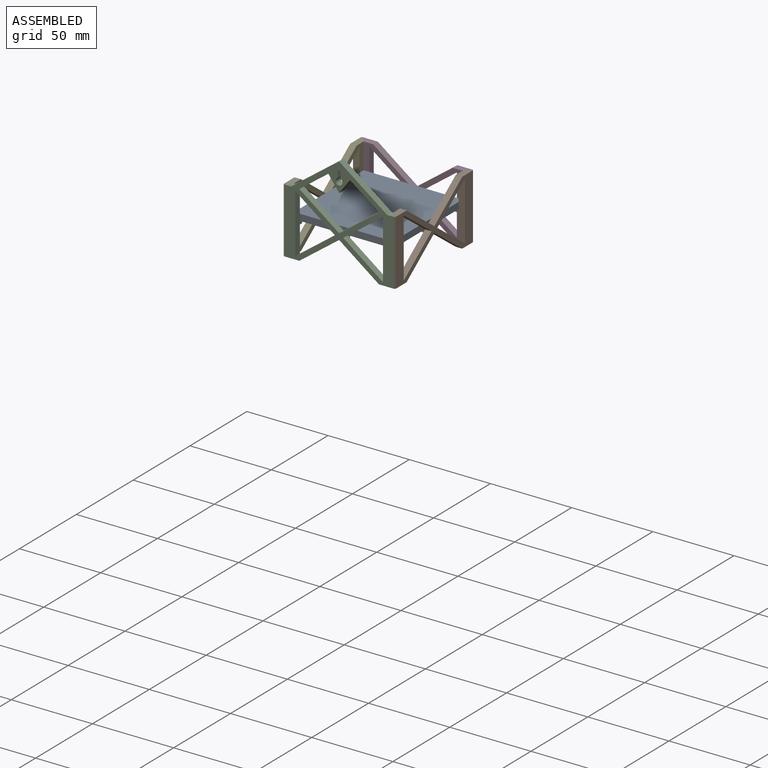
[diagram: assembled view]
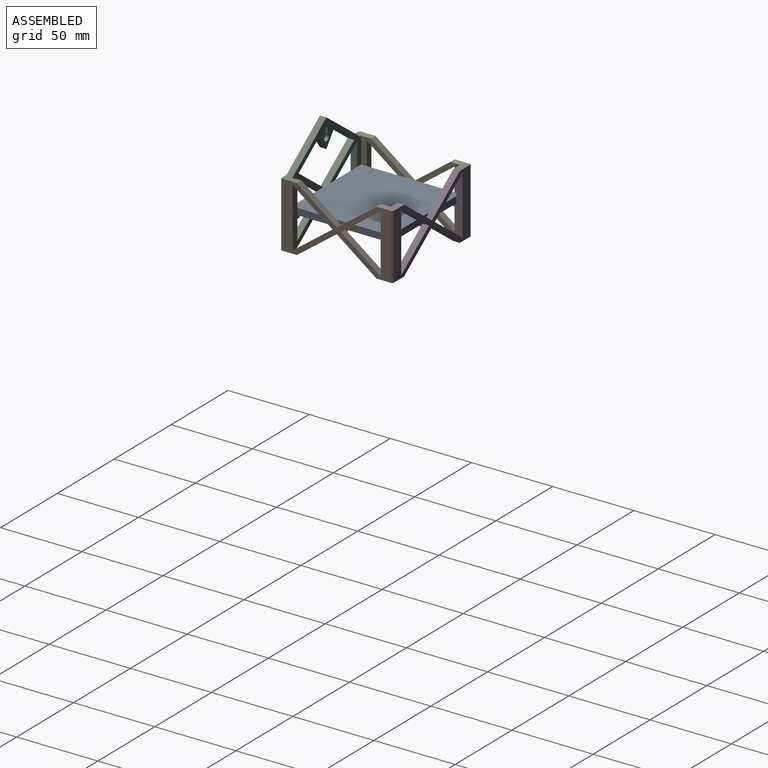
[diagram: assembled view, second angle]
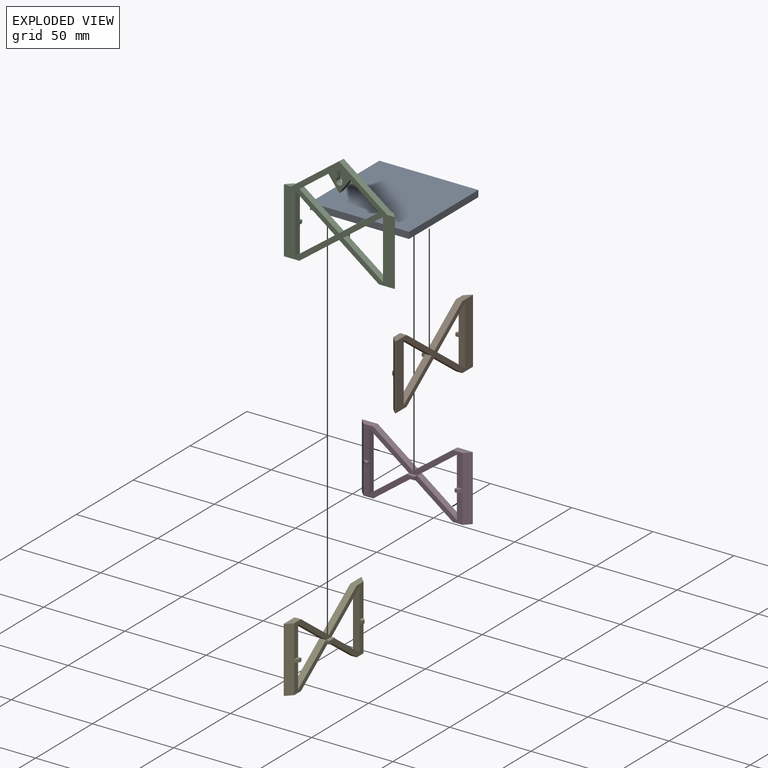
[diagram: exploded view]
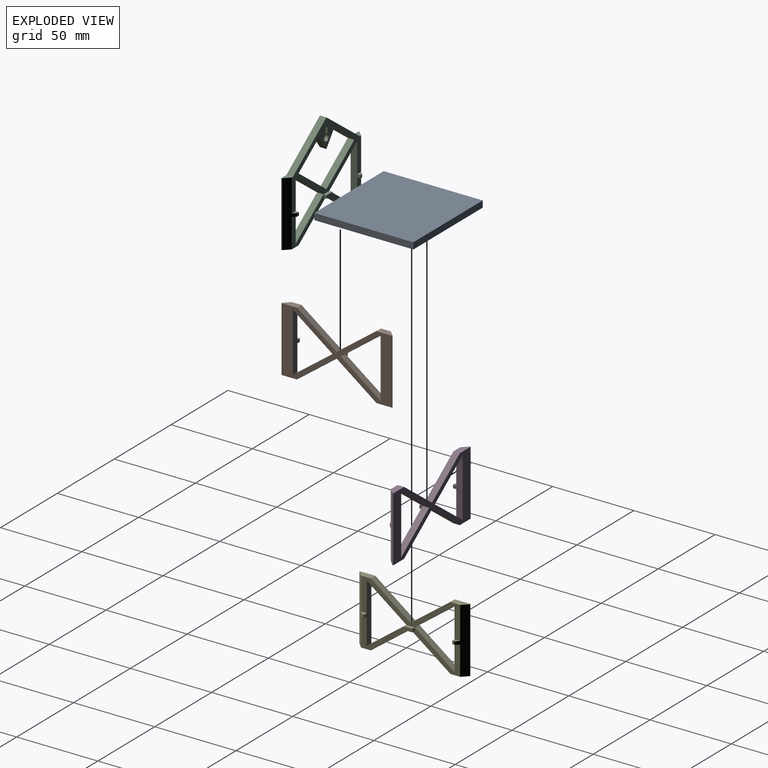
[diagram: exploded view, second angle]
ASSEMBLY  parts=5 mates=4
PART A: 6 faces, bbox 61x61x4 mm
  f0: plane 61x4mm, normal (1,0,0), area 244mm2, adj f1,f3,f4,f5
  f1: plane 61x4mm, normal (0,1,0), area 244mm2, adj f0,f2,f4,f5
  f2: plane 61x4mm, normal (-1,0,0), area 244mm2, adj f1,f3,f4,f5
  f3: plane 61x4mm, normal (0,-1,0), area 244mm2, adj f0,f2,f4,f5
  f4: plane 61x61mm, normal (0,0,1), area 3721mm2, adj f0,f1,f2,f3
  f5: plane 61x61mm, normal (0,0,-1), area 3721mm2, adj f0,f1,f2,f3
PART B: 34 faces, bbox 6x68x40 mm
  f0: plane 30.3x20mm, normal (-1,0,0), area 153.4mm2, adj f3,f10,f11,f18,f21,f25,f26,f32
  f1: plane 30.3x20mm, normal (-1,0,0), area 153.4mm2, adj f6,f12,f13,f16,f20,f23,f26,f29
  f2: plane 61x20mm, normal (-1,0,0), area 330.7mm2, adj f3,f4,f5,f6,f7,f8,f15,f17
  f3: plane 36.3x6mm, normal (0,1,0), area 149.2mm2, adj f0,f2,f4,f18,f19,f31,f32,f33
  f4: plane 24.5x18.15mm, normal (0,-0.6,-0.8), area 122mm2, adj f2,f3,f18,f19
  f5: plane 24.5x18.15mm, normal (0,0.6,-0.8), area 122mm2, adj f2,f6,f16,f19
  f6: plane 36.3x6mm, normal (0,-1,0), area 149.2mm2, adj f1,f2,f5,f16,f19,f28,f29,f30
  f7: plane 24.5x18.15mm, normal (0,0.6,0.8), area 122mm2, adj f2,f8,f17,f19
  f8: plane 9.5x4mm, normal (0,0,1), area 31.9mm2, adj f2,f7,f9,f19,f21
  f9: plane 40x0.5mm, normal (0,-1,0), area 20mm2, adj f8,f10,f19,f21
  f10: plane 9.5x4mm, normal (0,0,-1), area 31.9mm2, adj f0,f9,f11,f19,f21
  f11: plane 24.5x18.15mm, normal (0,0.6,-0.8), area 122mm2, adj f0,f10,f12,f19,f22
  f12: plane 24.5x18.15mm, normal (0,-0.6,-0.8), area 122mm2, adj f1,f11,f13,f19,f22
  f13: plane 9.5x4mm, normal (0,0,-1), area 31.9mm2, adj f1,f12,f14,f19,f20
  f14: plane 40x0.5mm, normal (0,1,0), area 20mm2, adj f13,f15,f19,f20
  f15: plane 9.5x4mm, normal (0,0,1), area 31.9mm2, adj f2,f14,f17,f19,f20
  f16: plane 24.5x18.15mm, normal (0,0.6,0.8), area 122mm2, adj f1,f5,f6,f19
  f17: plane 24.5x18.15mm, normal (0,-0.6,0.8), area 122mm2, adj f2,f7,f15,f19
  f18: plane 24.5x18.15mm, normal (0,-0.6,0.8), area 122mm2, adj f0,f3,f4,f19
  f19: plane 68x40mm, normal (1,0,0), area 941.5mm2, adj f3,f4,f5,f6,f7,f8,f9,f10
  f20: plane 40x5.5mm, normal (-0.71,0.71,0), area 203.6mm2, adj f1,f2,f13,f14,f15,f28,f29,f30
  f21: plane 40x5.5mm, normal (-0.71,-0.71,0), area 203.6mm2, adj f0,f2,f8,f9,f10,f31,f32,f33
  f22: plane 0.4x0.15mm, normal (1,0,0), area 0mm2, adj f11,f12,f26
  f23: plane 2x2mm, normal (0,1,0), area 4mm2, adj f1,f24,f26,f27
  f24: plane 5x2mm, normal (0,0,1), area 10mm2, adj f2,f23,f25,f27
  f25: plane 2x2mm, normal (0,-1,0), area 4mm2, adj f0,f24,f26,f27
  f26: plane 5x2mm, normal (0,0,-1), area 10mm2, adj f0,f1,f22,f23,f25,f27
  f27: plane 5x2mm, normal (-1,0,0), area 10mm2, adj f23,f24,f25,f26
  f28: plane 3.5x2mm, normal (0,0,1), area 5mm2, adj f2,f6,f20,f30
  f29: plane 3.5x2mm, normal (0,0,-1), area 5mm2, adj f1,f6,f20,f30
  f30: plane 2x1.5mm, normal (-1,0,0), area 3mm2, adj f6,f20,f28,f29
  f31: plane 3.5x2mm, normal (0,0,1), area 5mm2, adj f2,f3,f21,f33
  f32: plane 3.5x2mm, normal (0,0,-1), area 5mm2, adj f0,f3,f21,f33
  f33: plane 2x1.5mm, normal (-1,0,0), area 3mm2, adj f3,f21,f31,f32
PART C: 44 faces, bbox 6x68x61.9 mm
  f0: plane 61x41.85mm, normal (-1,0,0), area 602.5mm2, adj f3,f4,f5,f6,f7,f8,f9,f10
  f1: plane 30.3x20mm, normal (-1,0,0), area 153.4mm2, adj f13,f18,f19,f26,f37,f38,f41,f42
  f2: plane 30.3x20mm, normal (-1,0,0), area 153.4mm2, adj f12,f20,f21,f25,f31,f32,f35,f38
  f3: cylinder r=2mm len=4mm, axis (-1,0,0), area 41.9mm2, adj f0,f4,f28,f29
  f4: plane 4x3.44mm, normal (0,1,0), area 13.8mm2, adj f0,f3,f5,f29
  f5: cylinder r=1mm len=4mm, axis (-1,0,0), area 12.6mm2, adj f0,f4,f28,f29
  f6: plane 24.5x18.15mm, normal (0,-0.6,0.8), area 122mm2, adj f0,f7,f24,f29
  f7: plane 24.5x18.15mm, normal (0,0.6,0.8), area 122mm2, adj f0,f6,f8,f29
  f8: plane 17.85x13.22mm, normal (0,0.6,-0.8), area 88.9mm2, adj f0,f7,f9,f29
  f9: plane 8.98x6.65mm, normal (0,-0.8,-0.6), area 44.7mm2, adj f0,f8,f10,f29
  f10: plane 8.98x6.65mm, normal (0,0.8,-0.6), area 44.7mm2, adj f0,f9,f24,f29
  f11: plane 24.5x18.15mm, normal (0,0.6,-0.8), area 122mm2, adj f0,f12,f25,f29
  f12: plane 36.3x6mm, normal (0,-1,0), area 149.2mm2, adj f0,f2,f11,f25,f29,f30,f32,f33
  f13: plane 36.3x6mm, normal (0,1,0), area 149.2mm2, adj f0,f1,f14,f26,f29,f40,f42,f43
  f14: plane 24.5x18.15mm, normal (0,-0.6,-0.8), area 122mm2, adj f0,f13,f26,f29
  f15: plane 29.5x21.85mm, normal (0,-0.6,0.8), area 146.8mm2, adj f0,f16,f27,f29
  f16: plane 4.5x4mm, normal (0,0,1), area 11.9mm2, adj f0,f15,f17,f29,f41
  f17: plane 40x0.5mm, normal (0,-1,0), area 20mm2, adj f16,f18,f29,f41
  f18: plane 9.5x4mm, normal (0,0,-1), area 31.9mm2, adj f1,f17,f19,f29,f41
  f19: plane 24.5x18.15mm, normal (0,0.6,-0.8), area 122mm2, adj f1,f18,f20,f29,f34
  f20: plane 24.5x18.15mm, normal (0,-0.6,-0.8), area 122mm2, adj f2,f19,f21,f29,f34
  f21: plane 9.5x4mm, normal (0,0,-1), area 31.9mm2, adj f2,f20,f22,f29,f31
  f22: plane 40x0.5mm, normal (0,1,0), area 20mm2, adj f21,f23,f29,f31
  f23: plane 4.5x4mm, normal (0,0,1), area 11.9mm2, adj f0,f22,f27,f29,f31
  f24: plane 17.85x13.22mm, normal (0,-0.6,-0.8), area 88.9mm2, adj f0,f6,f10,f29
  f25: plane 24.5x18.15mm, normal (0,0.6,0.8), area 122mm2, adj f2,f11,f12,f29
  f26: plane 24.5x18.15mm, normal (0,-0.6,0.8), area 122mm2, adj f1,f13,f14,f29
  f27: plane 29.5x21.85mm, normal (0,0.6,0.8), area 146.8mm2, adj f0,f15,f23,f29
  f28: plane 4x3.44mm, normal (0,-1,0), area 13.8mm2, adj f0,f3,f5,f29
  f29: plane 68x61.85mm, normal (1,0,0), area 1213.3mm2, adj f3,f4,f5,f6,f7,f8,f9,f10
  f30: plane 2x1.5mm, normal (-1,0,0), area 3mm2, adj f12,f31,f32,f33
  f31: plane 40x5.5mm, normal (-0.71,0.71,0), area 203.6mm2, adj f0,f2,f21,f22,f23,f30,f32,f33
  f32: plane 3.5x2mm, normal (0,0,-1), area 5mm2, adj f2,f12,f30,f31
  f33: plane 3.5x2mm, normal (0,0,1), area 5mm2, adj f0,f12,f30,f31
  f34: plane 0.4x0.15mm, normal (1,0,0), area 0mm2, adj f19,f20,f38
  f35: plane 2x2mm, normal (0,1,0), area 4mm2, adj f2,f36,f38,f39
  f36: plane 5x2mm, normal (-1,0,0), area 10mm2, adj f35,f37,f38,f39
  f37: plane 2x2mm, normal (0,-1,0), area 4mm2, adj f1,f36,f38,f39
  f38: plane 5x2mm, normal (0,0,-1), area 10mm2, adj f1,f2,f34,f35,f36,f37
  f39: plane 5x2mm, normal (0,0,1), area 10mm2, adj f0,f35,f36,f37
  f40: plane 2x1.5mm, normal (-1,0,0), area 3mm2, adj f13,f41,f42,f43
  f41: plane 40x5.5mm, normal (-0.71,-0.71,0), area 203.6mm2, adj f0,f1,f16,f17,f18,f40,f42,f43
  f42: plane 3.5x2mm, normal (0,0,-1), area 5mm2, adj f1,f13,f40,f41
  f43: plane 3.5x2mm, normal (0,0,1), area 5mm2, adj f0,f13,f40,f41
PART D: same geometry as B
PART E: same geometry as B
PLACE A t=(26.93,13.76,0.18)mm
PLACE B t=(26.93,13.76,0.18)mm
PLACE C rot(axis=(0,0,-1),90deg) t=(-3.57,-16.74,0.18)mm fixed
PLACE D rot(axis=(0,0,1),90deg) t=(-3.57,44.26,0.18)mm
PLACE E rot(axis=(0,0,1),180deg) t=(-34.07,13.76,0.18)mm
MATE fastened D.f24 <-> A.f5  axis (0,0,1) through (-3.57,44.26,0.18)mm
MATE fastened E.f24 <-> A.f5  axis (0,0,1) through (-34.07,13.76,0.18)mm
MATE fastened C.f39 <-> A.f5  axis (0,0,1) through (-3.57,-16.74,0.18)mm
MATE fastened A.f5 <-> B.f24  axis (0,0,-1) through (26.93,13.76,0.18)mm
